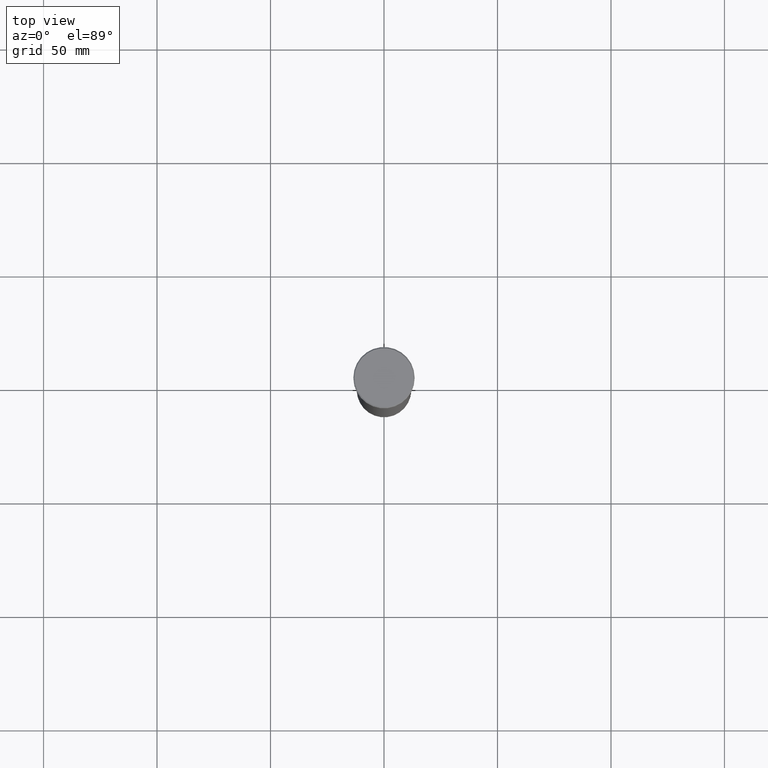
[diagram: clean part render]
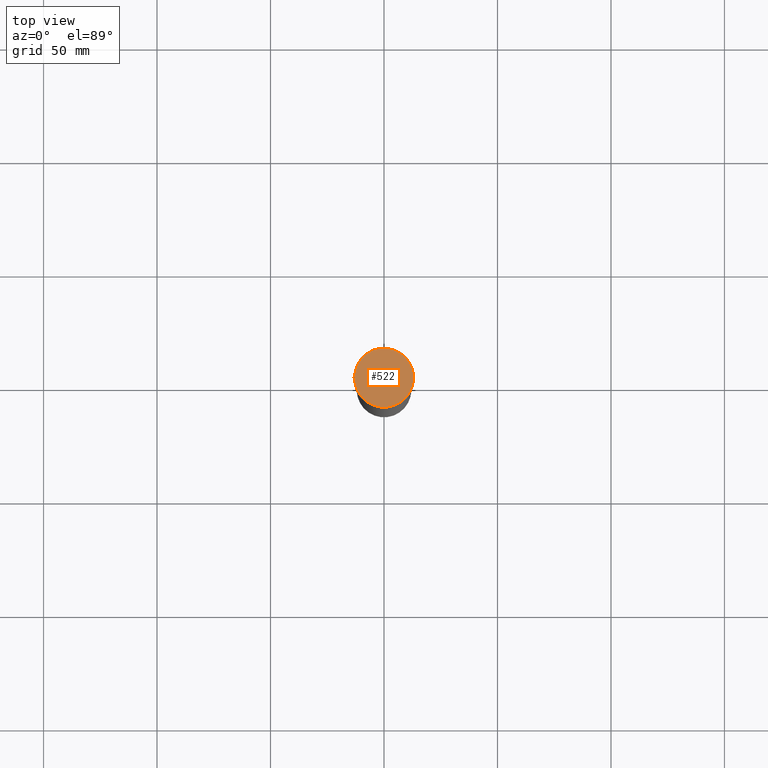
[diagram: same view with one face highlighted and labeled with its STEP entity id]
A machine part, top view. The second image highlights one B-rep face of the part: STEP entity #522.
In plain terms, the highlighted planar face has unit normal (0, -0, 1).
Its self-contained STEP definition (entity closure, byte-faithful):
#28 = CARTESIAN_POINT ( 'NONE',  ( 0.000000000000000000, 0.000000000000000000, 0.000000000000000000 ) ) ;
#45 = CARTESIAN_POINT ( 'NONE',  ( 0.000000000000000000, 0.000000000000000000, 0.000000000000000000 ) ) ;
#67 = CARTESIAN_POINT ( 'NONE',  ( 0.000000000000000000, 0.000000000000000000, 0.000000000000000000 ) ) ;
#78 = DIRECTION ( 'NONE',  ( -0.000000000000000000, -0.000000000000000000, 1.000000000000000000 ) ) ;
#134 = EDGE_CURVE ( 'NONE', #439, #305, #145, .T. ) ;
#143 = PLANE ( 'NONE',  #243 ) ;
#145 = CIRCLE ( 'NONE', #500, 12.99999999999999645 ) ;
#157 = DIRECTION ( 'NONE',  ( 1.000000000000000000, 0.000000000000000000, 0.000000000000000000 ) ) ;
#164 = CARTESIAN_POINT ( 'NONE',  ( 12.99999999999999645, 1.622657008870242882E-15, 0.000000000000000000 ) ) ;
#168 = DIRECTION ( 'NONE',  ( 1.000000000000000000, 0.000000000000000000, 0.000000000000000000 ) ) ;
#180 = ORIENTED_EDGE ( 'NONE', *, *, #134, .T. ) ;
#243 = AXIS2_PLACEMENT_3D ( 'NONE', #45, #598, #546 ) ;
#305 = VERTEX_POINT ( 'NONE', #443 ) ;
#318 = ORIENTED_EDGE ( 'NONE', *, *, #482, .T. ) ;
#422 = AXIS2_PLACEMENT_3D ( 'NONE', #67, #78, #157 ) ;
#439 = VERTEX_POINT ( 'NONE', #164 ) ;
#443 = CARTESIAN_POINT ( 'NONE',  ( -12.99999999999999645, 0.000000000000000000, 0.000000000000000000 ) ) ;
#470 = FACE_OUTER_BOUND ( 'NONE', #487, .T. ) ;
#480 = CIRCLE ( 'NONE', #422, 12.99999999999999645 ) ;
#482 = EDGE_CURVE ( 'NONE', #305, #439, #480, .T. ) ;
#487 = EDGE_LOOP ( 'NONE', ( #318, #180 ) ) ;
#500 = AXIS2_PLACEMENT_3D ( 'NONE', #28, #531, #168 ) ;
#522 = ADVANCED_FACE ( 'NONE', ( #470 ), #143, .T. ) ;
#531 = DIRECTION ( 'NONE',  ( -0.000000000000000000, -0.000000000000000000, 1.000000000000000000 ) ) ;
#546 = DIRECTION ( 'NONE',  ( 1.000000000000000000, 0.000000000000000000, 0.000000000000000000 ) ) ;
#598 = DIRECTION ( 'NONE',  ( 0.000000000000000000, -0.000000000000000000, 1.000000000000000000 ) ) ;